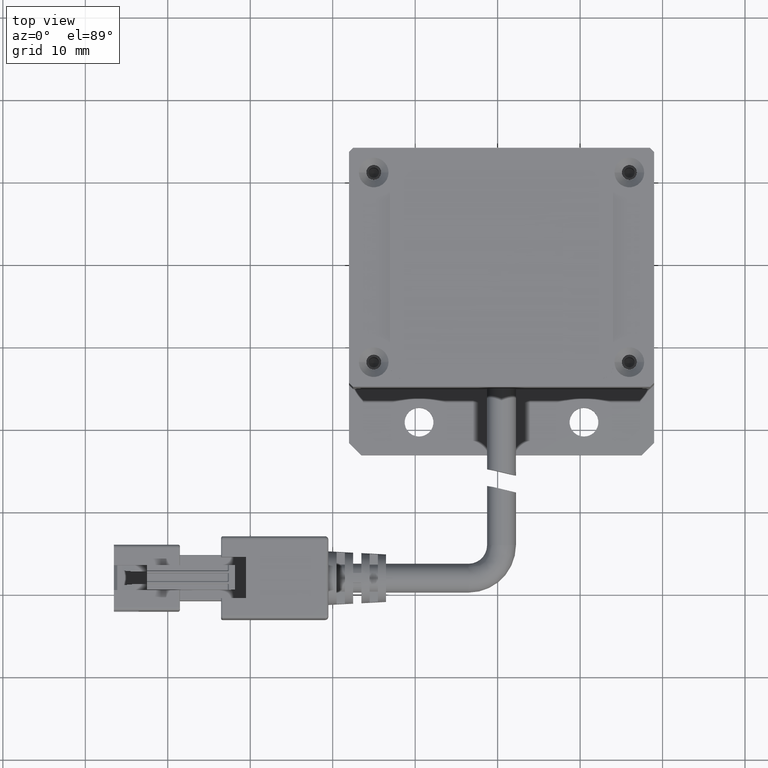
[diagram: clean part render]
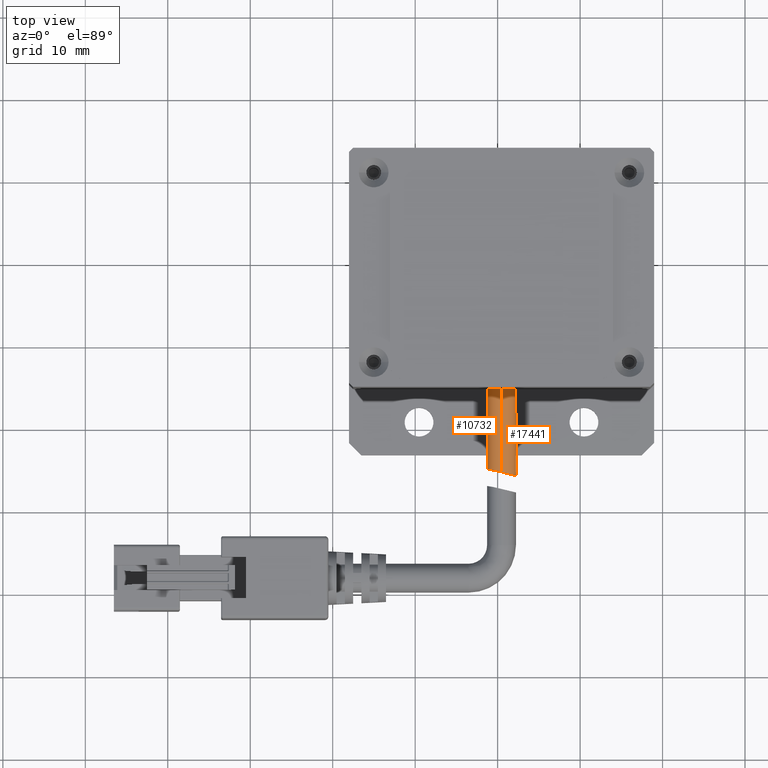
[diagram: same view with one multi-face feature highlighted, each face labeled with its STEP entity id]
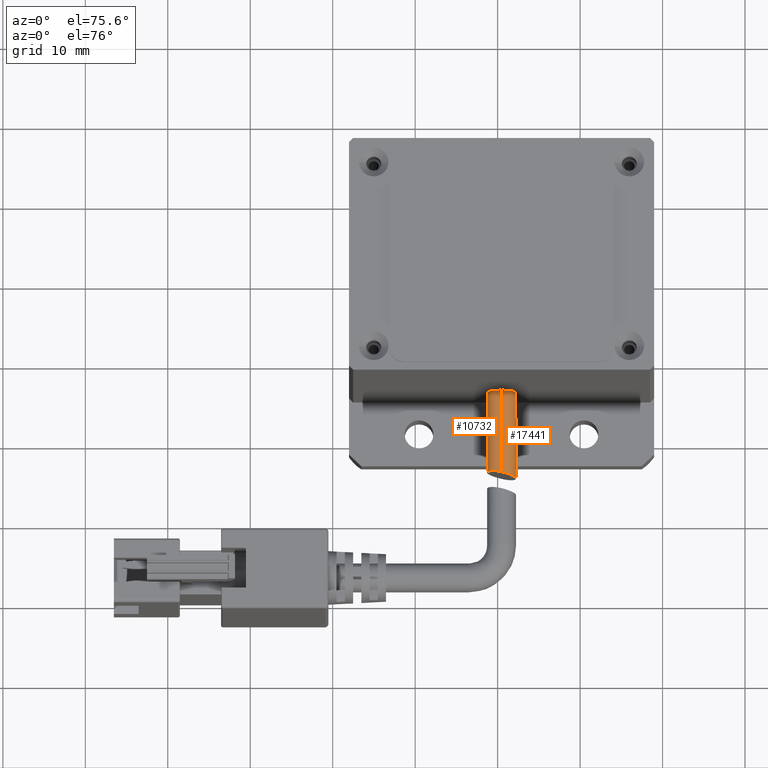
[diagram: same view with one multi-face feature highlighted, each face labeled with its STEP entity id]
A machine part, top view. The highlighted faces form ONE feature: a constant-radius fillet chain: 2 tangent blend faces with common blend radius 1.75 mm. The faces share edges in the B-rep.
A second angle (auxiliary view) of the same feature is appended — it is thin or edge-on in the first view.
Their STEP definitions:
[1] entity #10732 (Cylinder):
#78 = FACE_OUTER_BOUND ( 'NONE', #3116, .T. ) ;
#79 = CARTESIAN_POINT ( 'NONE',  ( 0.4705994654448234500, -14.05364642993505500, 5.749999999983630900 ) ) ;
#368 = CARTESIAN_POINT ( 'NONE',  ( -1.042873559093519900, -24.88975250661182100, 3.113862372400553600 ) ) ;
#439 = EDGE_CURVE ( 'NONE', #13123, #12766, #15215, .T. ) ;
#676 = CARTESIAN_POINT ( 'NONE',  ( 0.02474922023852828300, -25.09512249509186400, 2.304022965014888700 ) ) ;
#712 = LINE ( 'NONE', #11418, #16325 ) ;
#724 = CARTESIAN_POINT ( 'NONE',  ( -1.222497884999603100, -24.86467902237128100, 4.457498772719304700 ) ) ;
#794 = CARTESIAN_POINT ( 'NONE',  ( -0.08500202956045038700, -25.07058296162030700, 2.336644339365581600 ) ) ;
#821 = CARTESIAN_POINT ( 'NONE',  ( -0.2957008689630299400, -25.02530166820251600, 2.422587919248664800 ) ) ;
#882 = EDGE_CURVE ( 'NONE', #8559, #13123, #13798, .T. ) ;
#939 = EDGE_CURVE ( 'NONE', #12766, #5951, #18721, .T. ) ;
#965 = CARTESIAN_POINT ( 'NONE',  ( -0.3959358429014658800, -25.00469486323454000, 2.475344811886908600 ) ) ;
#1028 = CARTESIAN_POINT ( 'NONE',  ( -0.5861404330212365300, -24.96741100540515000, 2.600443759530610700 ) ) ;
#1222 = CARTESIAN_POINT ( 'NONE',  ( -0.6768385021720296800, -24.95062188157074300, 2.673721047648934100 ) ) ;
#1273 = CARTESIAN_POINT ( 'NONE',  ( -0.8399824093573518000, -24.92198896589667400, 2.834665327722168700 ) ) ;
#1299 = EDGE_CURVE ( 'NONE', #8559, #5951, #712, .T. ) ;
#2210 = CARTESIAN_POINT ( 'NONE',  ( -1.188838595878819500, -24.86907829348658100, 4.567570610106566100 ) ) ;
#2529 = CARTESIAN_POINT ( 'NONE',  ( -1.098571058635477500, -24.88166961181650900, 3.216777711591851200 ) ) ;
#3019 = VECTOR ( 'NONE', #8211, 1000.000000000000000 ) ;
#3116 = EDGE_LOOP ( 'NONE', ( #8271, #17134, #15000, #18390 ) ) ;
#3381 = CARTESIAN_POINT ( 'NONE',  ( -1.279175606184047400, -24.85744997765360900, 3.767729095170846000 ) ) ;
#3748 = CARTESIAN_POINT ( 'NONE',  ( -0.6774484790147192700, -24.95050497102068800, 5.325864518086371300 ) ) ;
#4253 = AXIS2_PLACEMENT_3D ( 'NONE', #16567, #8541, #8512 ) ;
#4356 = CARTESIAN_POINT ( 'NONE',  ( 0.4705994654448243400, -25.19990101793981900, 2.249999999983630000 ) ) ;
#5951 = VERTEX_POINT ( 'NONE', #12937 ) ;
#6229 = CARTESIAN_POINT ( 'NONE',  ( 0.4705994654448236700, -34.05364642993505000, 3.999999999983630400 ) ) ;
#6410 = CYLINDRICAL_SURFACE ( 'NONE', #15786, 1.749999999999999800 ) ;
#7531 = CARTESIAN_POINT ( 'NONE',  ( 0.4705994654448235100, -25.19990101793981600, 5.749999999983629100 ) ) ;
#8211 = DIRECTION ( 'NONE',  ( -6.162975822039154700E-033, 1.000000000000000000, 0.0000000000000000000 ) ) ;
#8271 = ORIENTED_EDGE ( 'NONE', *, *, #882, .T. ) ;
#8512 = DIRECTION ( 'NONE',  ( 0.0000000000000000000, 0.0000000000000000000, -1.000000000000000000 ) ) ;
#8541 = DIRECTION ( 'NONE',  ( 6.162975822039154700E-033, -1.000000000000000000, -0.0000000000000000000 ) ) ;
#8559 = VERTEX_POINT ( 'NONE', #4356 ) ;
#9912 = CARTESIAN_POINT ( 'NONE',  ( 0.4705994654448243400, -25.19990101793981900, 2.249999999983630000 ) ) ;
#9944 = CARTESIAN_POINT ( 'NONE',  ( 0.3570912748878939900, -25.17248214972246600, 2.249999999983628700 ) ) ;
#10621 = CARTESIAN_POINT ( 'NONE',  ( 0.2452615692010497200, -25.14595928630660300, 2.260936063031251400 ) ) ;
#10732 = ADVANCED_FACE ( 'NONE', ( #78 ), #6410, .T. ) ;
#11418 = CARTESIAN_POINT ( 'NONE',  ( 0.4705994654448236700, -34.05364642993505000, 2.249999999983630400 ) ) ;
#12766 = VERTEX_POINT ( 'NONE', #79 ) ;
#12937 = CARTESIAN_POINT ( 'NONE',  ( 0.4705994654448236700, -14.05364642993505500, 2.249999999983630400 ) ) ;
#13123 = VERTEX_POINT ( 'NONE', #7531 ) ;
#13138 = CARTESIAN_POINT ( 'NONE',  ( -0.8422630943240884100, -24.92159871910014600, 5.162894106211111600 ) ) ;
#13407 = CARTESIAN_POINT ( 'NONE',  ( -1.279511758848314700, -24.85740799405950300, 4.113584093202124600 ) ) ;
#13798 = B_SPLINE_CURVE_WITH_KNOTS ( 'NONE', 3,
 ( #9912, #9944, #10621, #676, #794, #821, #965, #1028, #1222, #1273, #19771, #368, #2529, #14503, #3381, #13407, #16630, #724, #2210, #15341, #15711, #15775, #13138, #3748, #14662, #16053, #16120, #16197, #16223, #16269 ),
 .UNSPECIFIED., .F., .F.,
 ( 4, 2, 2, 2, 2, 2, 2, 2, 2, 2, 2, 2, 2, 2, 4 ),
 ( 0.005548308325376448100, 0.005893685317680524300, 0.006239062309984600600, 0.006584439302288677700, 0.006929816294592753100, 0.007275193286896830200, 0.007620570279200906400, 0.008311324263809059800, 0.008656701256113136900, 0.009002078248417212300, 0.009347455240721289400, 0.009692832233025366500, 0.01003820922532944500, 0.01038358621763352100, 0.01107434020224167800 ),
 .UNSPECIFIED. ) ;
#14080 = CARTESIAN_POINT ( 'NONE',  ( 0.4705994654448234500, -34.05364642993505000, 5.749999999983630000 ) ) ;
#14503 = CARTESIAN_POINT ( 'NONE',  ( -1.232107582558581000, -24.86303441953112200, 3.535003381303519100 ) ) ;
#14662 = CARTESIAN_POINT ( 'NONE',  ( -0.5884679230606761900, -24.96697160297496500, 5.397789949337921600 ) ) ;
#15000 = ORIENTED_EDGE ( 'NONE', *, *, #939, .T. ) ;
#15215 = LINE ( 'NONE', #14080, #3019 ) ;
#15341 = CARTESIAN_POINT ( 'NONE',  ( -1.099731379048436200, -24.88150220582965100, 4.780981507881210600 ) ) ;
#15711 = CARTESIAN_POINT ( 'NONE',  ( -1.043988438334859400, -24.88958889393778100, 4.884142198990447000 ) ) ;
#15775 = CARTESIAN_POINT ( 'NONE',  ( -0.9154801279334111600, -24.90960732837700300, 5.074461403274026100 ) ) ;
#15786 = AXIS2_PLACEMENT_3D ( 'NONE', #6229, #18587, #17132 ) ;
#16053 = CARTESIAN_POINT ( 'NONE',  ( -0.3985974983045672500, -25.00415673099631400, 5.523133977715257700 ) ) ;
#16120 = CARTESIAN_POINT ( 'NONE',  ( -0.2964634343618862700, -25.02514302175652000, 5.577033294611796400 ) ) ;
#16197 = CARTESIAN_POINT ( 'NONE',  ( 0.01920171208019053100, -25.09296698378538800, 5.705994749905083400 ) ) ;
#16223 = CARTESIAN_POINT ( 'NONE',  ( 0.2435945943174291100, -25.14506606184006500, 5.749999999985841500 ) ) ;
#16269 = CARTESIAN_POINT ( 'NONE',  ( 0.4705994654448235100, -25.19990101793981600, 5.749999999983629100 ) ) ;
#16325 = VECTOR ( 'NONE', #19120, 1000.000000000000000 ) ;
#16567 = CARTESIAN_POINT ( 'NONE',  ( 0.4705994654448236700, -14.05364642993505500, 3.999999999983630400 ) ) ;
#16630 = CARTESIAN_POINT ( 'NONE',  ( -1.267988952804494500, -24.85882595025181300, 4.230638411931686900 ) ) ;
#17132 = DIRECTION ( 'NONE',  ( 0.0000000000000000000, 0.0000000000000000000, -1.000000000000000000 ) ) ;
#17134 = ORIENTED_EDGE ( 'NONE', *, *, #439, .T. ) ;
#18390 = ORIENTED_EDGE ( 'NONE', *, *, #1299, .F. ) ;
#18587 = DIRECTION ( 'NONE',  ( -6.162975822039154700E-033, 1.000000000000000000, 0.0000000000000000000 ) ) ;
#18721 = CIRCLE ( 'NONE', #4253, 1.749999999999999800 ) ;
#19120 = DIRECTION ( 'NONE',  ( -6.162975822039154700E-033, 1.000000000000000000, 0.0000000000000000000 ) ) ;
#19771 = CARTESIAN_POINT ( 'NONE',  ( -0.9132812347323217000, -24.90996018052063100, 2.922635299104201900 ) ) ;
[2] entity #17441 (Cylinder):
#79 = CARTESIAN_POINT ( 'NONE',  ( 0.4705994654448234500, -14.05364642993505500, 5.749999999983630900 ) ) ;
#439 = EDGE_CURVE ( 'NONE', #13123, #12766, #15215, .T. ) ;
#712 = LINE ( 'NONE', #11418, #16325 ) ;
#773 = CARTESIAN_POINT ( 'NONE',  ( 1.526346058954211300, -25.46018412444359300, 5.400271376303662900 ) ) ;
#849 = CARTESIAN_POINT ( 'NONE',  ( 1.984025661186550800, -25.56817217877230100, 3.113870852844189000 ) ) ;
#1188 = DIRECTION ( 'NONE',  ( -6.162975822039154700E-033, 1.000000000000000000, 0.0000000000000000000 ) ) ;
#1299 = EDGE_CURVE ( 'NONE', #8559, #5951, #712, .T. ) ;
#1354 = ORIENTED_EDGE ( 'NONE', *, *, #1299, .T. ) ;
#1370 = EDGE_CURVE ( 'NONE', #13123, #8559, #19462, .T. ) ;
#1625 = EDGE_CURVE ( 'NONE', #5951, #12766, #13820, .T. ) ;
#2345 = CARTESIAN_POINT ( 'NONE',  ( 1.779748762345099800, -25.52088140049359000, 5.166920295776366200 ) ) ;
#2418 = CARTESIAN_POINT ( 'NONE',  ( 1.782025022611525300, -25.52141980853176800, 2.835515580640702200 ) ) ;
#3019 = VECTOR ( 'NONE', #8211, 1000.000000000000000 ) ;
#3792 = FACE_OUTER_BOUND ( 'NONE', #11332, .T. ) ;
#3919 = CARTESIAN_POINT ( 'NONE',  ( 1.982590036491468600, -25.56784676534852700, 4.888631675858251300 ) ) ;
#3992 = CARTESIAN_POINT ( 'NONE',  ( 1.528691452692075600, -25.46075403154351900, 2.601499705496509200 ) ) ;
#4356 = CARTESIAN_POINT ( 'NONE',  ( 0.4705994654448243400, -25.19990101793981900, 2.249999999983630000 ) ) ;
#5405 = CARTESIAN_POINT ( 'NONE',  ( 0.4705994654448235100, -25.19990101793981600, 5.749999999983629100 ) ) ;
#5475 = CARTESIAN_POINT ( 'NONE',  ( 2.172832935185685400, -25.61034858166788200, 4.466923281395891900 ) ) ;
#5550 = CARTESIAN_POINT ( 'NONE',  ( 1.237548991285971000, -25.38921324399208900, 2.422931293328922200 ) ) ;
#5951 = VERTEX_POINT ( 'NONE', #12937 ) ;
#6029 = AXIS2_PLACEMENT_3D ( 'NONE', #12116, #1188, #10579 ) ;
#6256 = CARTESIAN_POINT ( 'NONE',  ( 0.4705994654448236700, -14.05364642993505500, 3.999999999983630400 ) ) ;
#6974 = CARTESIAN_POINT ( 'NONE',  ( 0.6965918080035690100, -25.25497713656480800, 5.738979390417672000 ) ) ;
#7044 = CARTESIAN_POINT ( 'NONE',  ( 2.220727273564397900, -25.62051373913998000, 3.886261959677683300 ) ) ;
#7111 = CARTESIAN_POINT ( 'NONE',  ( 0.6985309912472759100, -25.25495981535255300, 2.249999999983629500 ) ) ;
#7531 = CARTESIAN_POINT ( 'NONE',  ( 0.4705994654448235100, -25.19990101793981600, 5.749999999983629100 ) ) ;
#7837 = DIRECTION ( 'NONE',  ( 0.0000000000000000000, 0.0000000000000000000, -1.000000000000000000 ) ) ;
#8142 = ORIENTED_EDGE ( 'NONE', *, *, #439, .F. ) ;
#8211 = DIRECTION ( 'NONE',  ( -6.162975822039154700E-033, 1.000000000000000000, 0.0000000000000000000 ) ) ;
#8559 = VERTEX_POINT ( 'NONE', #4356 ) ;
#8565 = CARTESIAN_POINT ( 'NONE',  ( 1.026576531974168600, -25.33682056819148100, 5.663215029880042600 ) ) ;
#8631 = CARTESIAN_POINT ( 'NONE',  ( 2.163334949554195600, -25.60808408685989300, 3.541029067901631400 ) ) ;
#9043 = ORIENTED_EDGE ( 'NONE', *, *, #1625, .T. ) ;
#9612 = CYLINDRICAL_SURFACE ( 'NONE', #6029, 1.749999999999999800 ) ;
#10111 = CARTESIAN_POINT ( 'NONE',  ( 1.336791088347851800, -25.41377090730421200, 5.524818962831512100 ) ) ;
#10177 = CARTESIAN_POINT ( 'NONE',  ( 2.039982084639546700, -25.58078056934518000, 3.217092721508353100 ) ) ;
#10579 = DIRECTION ( 'NONE',  ( 0.0000000000000000000, 0.0000000000000000000, -1.000000000000000000 ) ) ;
#11332 = EDGE_LOOP ( 'NONE', ( #8142, #17483, #1354, #9043 ) ) ;
#11418 = CARTESIAN_POINT ( 'NONE',  ( 0.4705994654448236700, -34.05364642993505000, 2.249999999983630400 ) ) ;
#11707 = CARTESIAN_POINT ( 'NONE',  ( 1.616772546055109400, -25.48205641460346600, 5.327351546331401600 ) ) ;
#11768 = CARTESIAN_POINT ( 'NONE',  ( 1.855268923521330400, -25.53854134236640400, 2.923722058540313200 ) ) ;
#12116 = CARTESIAN_POINT ( 'NONE',  ( 0.4705994654448236700, -34.05364642993505000, 3.999999999983630400 ) ) ;
#12766 = VERTEX_POINT ( 'NONE', #79 ) ;
#12937 = CARTESIAN_POINT ( 'NONE',  ( 0.4705994654448236700, -14.05364642993505500, 2.249999999983630400 ) ) ;
#13123 = VERTEX_POINT ( 'NONE', #7531 ) ;
#13292 = CARTESIAN_POINT ( 'NONE',  ( 1.852995511739378400, -25.53801304954572900, 5.079241823436966300 ) ) ;
#13359 = CARTESIAN_POINT ( 'NONE',  ( 1.617468887431034800, -25.48222608520156700, 2.673142251845027000 ) ) ;
#13820 = CIRCLE ( 'NONE', #16262, 1.749999999999999800 ) ;
#14080 = CARTESIAN_POINT ( 'NONE',  ( 0.4705994654448234500, -34.05364642993505000, 5.749999999983630000 ) ) ;
#14771 = CARTESIAN_POINT ( 'NONE',  ( 0.5845594501789808100, -25.22742902088086900, 5.749999999982521500 ) ) ;
#14843 = CARTESIAN_POINT ( 'NONE',  ( 2.038636577282457300, -25.58047809682035000, 4.785518077406163900 ) ) ;
#14910 = CARTESIAN_POINT ( 'NONE',  ( 1.339338339589921000, -25.41439887055783600, 2.476630545220108300 ) ) ;
#15215 = LINE ( 'NONE', #14080, #3019 ) ;
#16262 = AXIS2_PLACEMENT_3D ( 'NONE', #6256, #17167, #7837 ) ;
#16325 = VECTOR ( 'NONE', #19120, 1000.000000000000000 ) ;
#16385 = CARTESIAN_POINT ( 'NONE',  ( 2.220340590680548700, -25.62043051789700200, 4.233325397064796800 ) ) ;
#16455 = CARTESIAN_POINT ( 'NONE',  ( 0.9226563756604320200, -25.31101379792079300, 2.294252752377428100 ) ) ;
#17167 = DIRECTION ( 'NONE',  ( 6.162975822039154700E-033, -1.000000000000000000, -0.0000000000000000000 ) ) ;
#17441 = ADVANCED_FACE ( 'NONE', ( #3792 ), #9612, .T. ) ;
#17483 = ORIENTED_EDGE ( 'NONE', *, *, #1370, .T. ) ;
#17832 = CARTESIAN_POINT ( 'NONE',  ( 0.9170992705115325000, -25.30954815112586700, 5.695806528843845300 ) ) ;
#17905 = CARTESIAN_POINT ( 'NONE',  ( 2.209163843499488700, -25.61803601229597000, 3.768912053481427100 ) ) ;
#17972 = CARTESIAN_POINT ( 'NONE',  ( 0.4705994654448243400, -25.19990101793981900, 2.249999999983630000 ) ) ;
#19120 = DIRECTION ( 'NONE',  ( -6.162975822039154700E-033, 1.000000000000000000, 0.0000000000000000000 ) ) ;
#19404 = CARTESIAN_POINT ( 'NONE',  ( 1.236856494025270900, -25.38904170372084600, 5.577417161146448700 ) ) ;
#19462 = B_SPLINE_CURVE_WITH_KNOTS ( 'NONE', 3,
 ( #5405, #14771, #6974, #17832, #8565, #19404, #10111, #773, #11707, #2345, #13292, #3919, #14843, #5475, #16385, #7044, #17905, #8631, #19465, #10177, #849, #11768, #2418, #13359, #3992, #14910, #5550, #16455, #7111, #17972 ),
 .UNSPECIFIED., .F., .F.,
 ( 4, 2, 2, 2, 2, 2, 2, 2, 2, 2, 2, 2, 2, 2, 4 ),
 ( 1.728278130482739700E-014, 0.0003467692703522316800, 0.0006935385406871806300, 0.001040307811022129500, 0.001387077081357078400, 0.001733846351692027500, 0.002080615622026976400, 0.002774154162696870800, 0.003120923433031818600, 0.003467692703366765500, 0.003814461973701713300, 0.004161231244036661100, 0.004508000514371608500, 0.004854769784706555000, 0.005548308325376448100 ),
 .UNSPECIFIED. ) ;
#19465 = CARTESIAN_POINT ( 'NONE',  ( 2.129447635897109900, -25.60068846934981600, 3.430677279984543700 ) ) ;